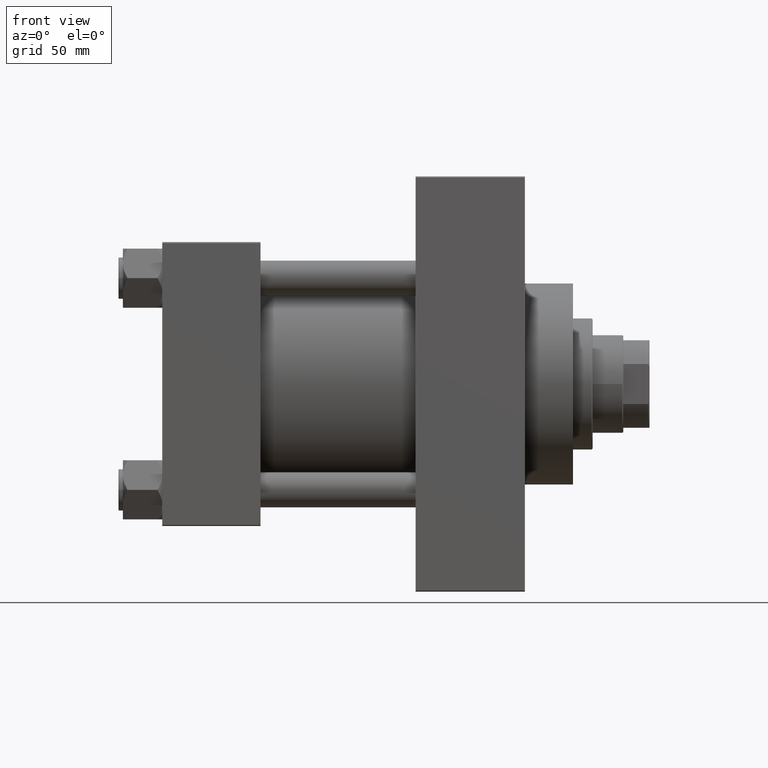
[diagram: clean part render]
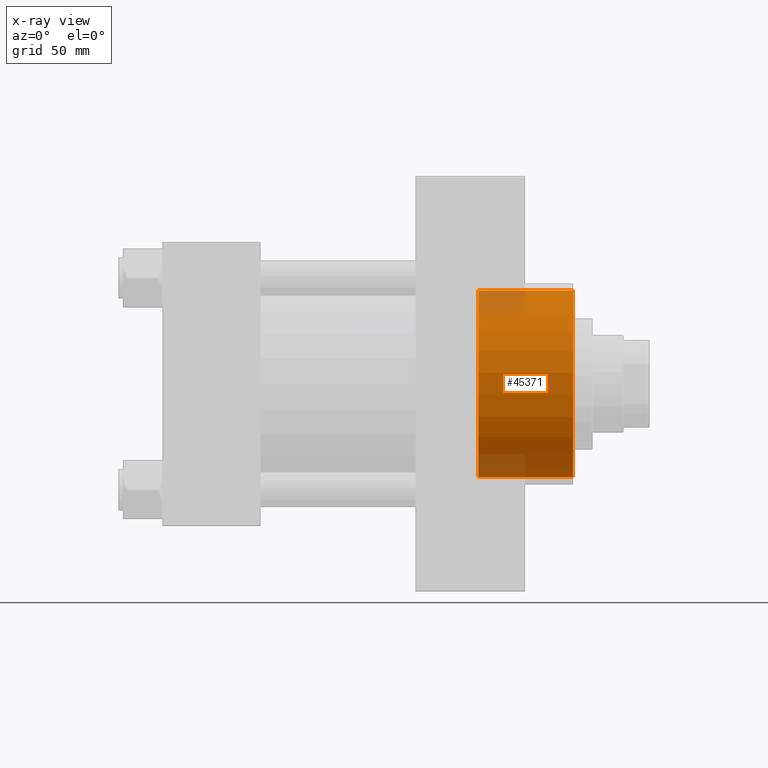
[diagram: x-ray — body ghosted, one internal face saturated and labeled with its STEP entity id]
A machine part, front view, then the same camera in x-ray: the body is ghosted and one INTERNAL B-rep face — a face not visible from any outside direction — is saturated and labeled: STEP entity #45371.
In plain terms, the highlighted cylindrical surface (partial cylindrical patch) has radius 42.75 mm, axis along (1, 0, 0).
Its self-contained STEP definition (entity closure, byte-faithful):
#579 = EDGE_CURVE ( 'NONE', #36040, #35624, #8045, .T. ) ;
#1276 = VECTOR ( 'NONE', #27513, 1000.000000000000000 ) ;
#2234 = EDGE_CURVE ( 'NONE', #31246, #36040, #25031, .T. ) ;
#2257 = AXIS2_PLACEMENT_3D ( 'NONE', #26460, #44545, #11511 ) ;
#2452 = CARTESIAN_POINT ( 'NONE',  ( 187.9999999999999716, 0.000000000000000000, -42.75000000000000000 ) ) ;
#7955 = EDGE_CURVE ( 'NONE', #31246, #42523, #45114, .T. ) ;
#8045 = LINE ( 'NONE', #41341, #38061 ) ;
#9284 = DIRECTION ( 'NONE',  ( 1.000000000000000000, 0.000000000000000000, 0.000000000000000000 ) ) ;
#10497 = FACE_OUTER_BOUND ( 'NONE', #38437, .T. ) ;
#11511 = DIRECTION ( 'NONE',  ( 0.000000000000000000, 0.000000000000000000, -1.000000000000000000 ) ) ;
#13711 = CARTESIAN_POINT ( 'NONE',  ( 144.7399999999999807, 0.000000000000000000, -42.75000000000000000 ) ) ;
#18424 = CIRCLE ( 'NONE', #2257, 42.75000000000000000 ) ;
#19642 = AXIS2_PLACEMENT_3D ( 'NONE', #31228, #9284, #24005 ) ;
#20280 = ORIENTED_EDGE ( 'NONE', *, *, #579, .F. ) ;
#21523 = ORIENTED_EDGE ( 'NONE', *, *, #7955, .T. ) ;
#24005 = DIRECTION ( 'NONE',  ( 0.000000000000000000, 0.000000000000000000, -1.000000000000000000 ) ) ;
#24553 = AXIS2_PLACEMENT_3D ( 'NONE', #44976, #44747, #26186 ) ;
#25031 = CIRCLE ( 'NONE', #19642, 42.75000000000000000 ) ;
#26186 = DIRECTION ( 'NONE',  ( 0.000000000000000000, 0.000000000000000000, -1.000000000000000000 ) ) ;
#26460 = CARTESIAN_POINT ( 'NONE',  ( 187.9999999999999716, 0.000000000000000000, 0.000000000000000000 ) ) ;
#27513 = DIRECTION ( 'NONE',  ( 1.000000000000000000, -0.000000000000000000, -0.000000000000000000 ) ) ;
#29344 = CARTESIAN_POINT ( 'NONE',  ( 144.7399999999999807, 5.235365066354935472E-15, 42.75000000000000000 ) ) ;
#31161 = ORIENTED_EDGE ( 'NONE', *, *, #31528, .T. ) ;
#31228 = CARTESIAN_POINT ( 'NONE',  ( 144.7399999999999807, 0.000000000000000000, 0.000000000000000000 ) ) ;
#31246 = VERTEX_POINT ( 'NONE', #29344 ) ;
#31528 = EDGE_CURVE ( 'NONE', #42523, #35624, #18424, .T. ) ;
#35624 = VERTEX_POINT ( 'NONE', #2452 ) ;
#36040 = VERTEX_POINT ( 'NONE', #13711 ) ;
#36989 = CARTESIAN_POINT ( 'NONE',  ( 187.9999999999999716, 5.235365066354935472E-15, 42.75000000000000000 ) ) ;
#38061 = VECTOR ( 'NONE', #41579, 1000.000000000000000 ) ;
#38437 = EDGE_LOOP ( 'NONE', ( #42266, #21523, #31161, #20280 ) ) ;
#38590 = CARTESIAN_POINT ( 'NONE',  ( 144.7399999999999807, 5.235365066354935472E-15, 42.75000000000000000 ) ) ;
#41341 = CARTESIAN_POINT ( 'NONE',  ( 144.7399999999999807, 0.000000000000000000, -42.75000000000000000 ) ) ;
#41579 = DIRECTION ( 'NONE',  ( 1.000000000000000000, -0.000000000000000000, -0.000000000000000000 ) ) ;
#42266 = ORIENTED_EDGE ( 'NONE', *, *, #2234, .F. ) ;
#42523 = VERTEX_POINT ( 'NONE', #36989 ) ;
#44505 = CYLINDRICAL_SURFACE ( 'NONE', #24553, 42.75000000000000000 ) ;
#44545 = DIRECTION ( 'NONE',  ( 1.000000000000000000, 0.000000000000000000, 0.000000000000000000 ) ) ;
#44747 = DIRECTION ( 'NONE',  ( 1.000000000000000000, -0.000000000000000000, -0.000000000000000000 ) ) ;
#44976 = CARTESIAN_POINT ( 'NONE',  ( 144.7399999999999807, 0.000000000000000000, 0.000000000000000000 ) ) ;
#45114 = LINE ( 'NONE', #38590, #1276 ) ;
#45371 = ADVANCED_FACE ( 'NONE', ( #10497 ), #44505, .F. ) ;